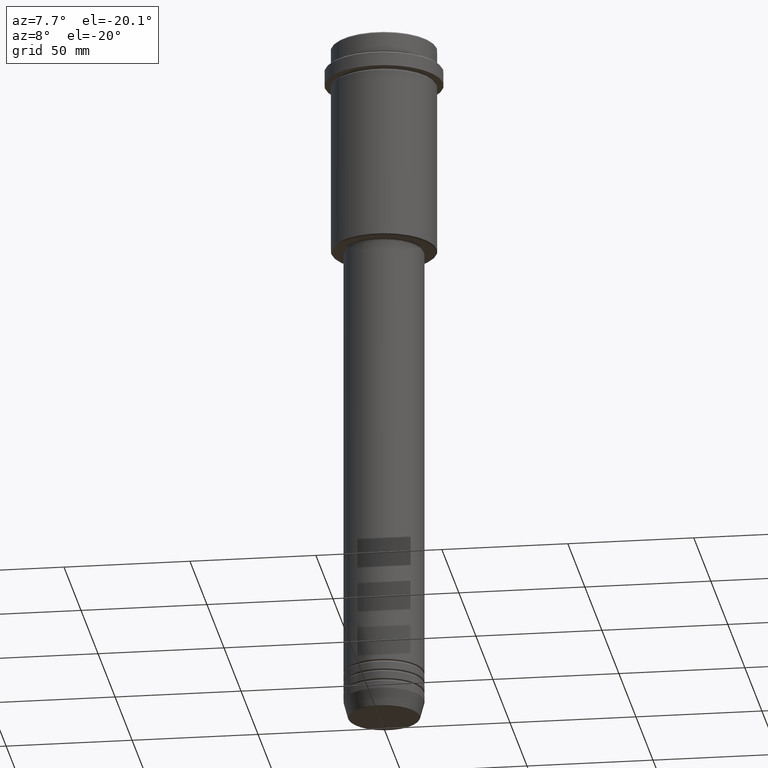
[diagram: clean part render]
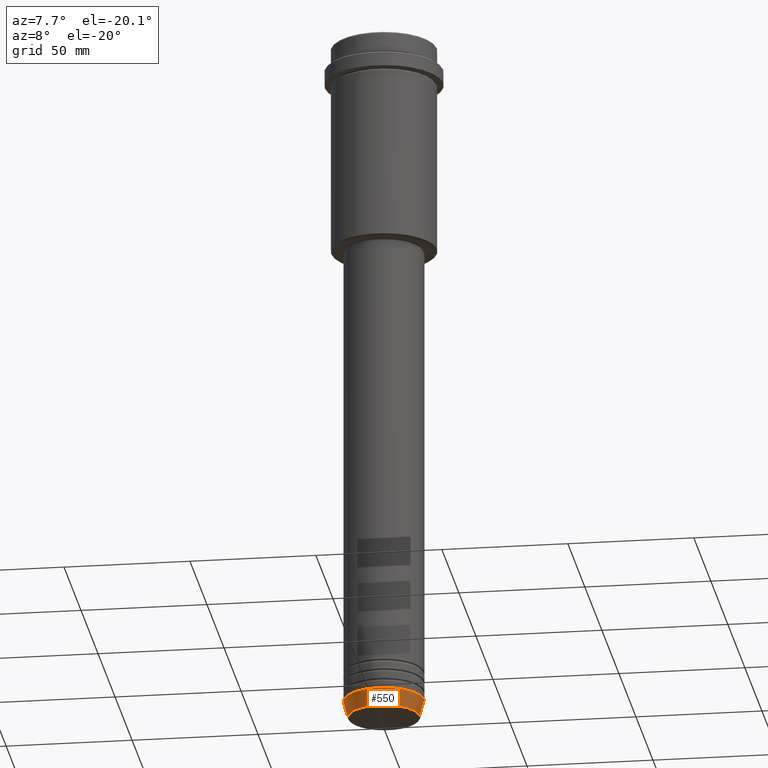
[diagram: same view with one face highlighted and labeled with its STEP entity id]
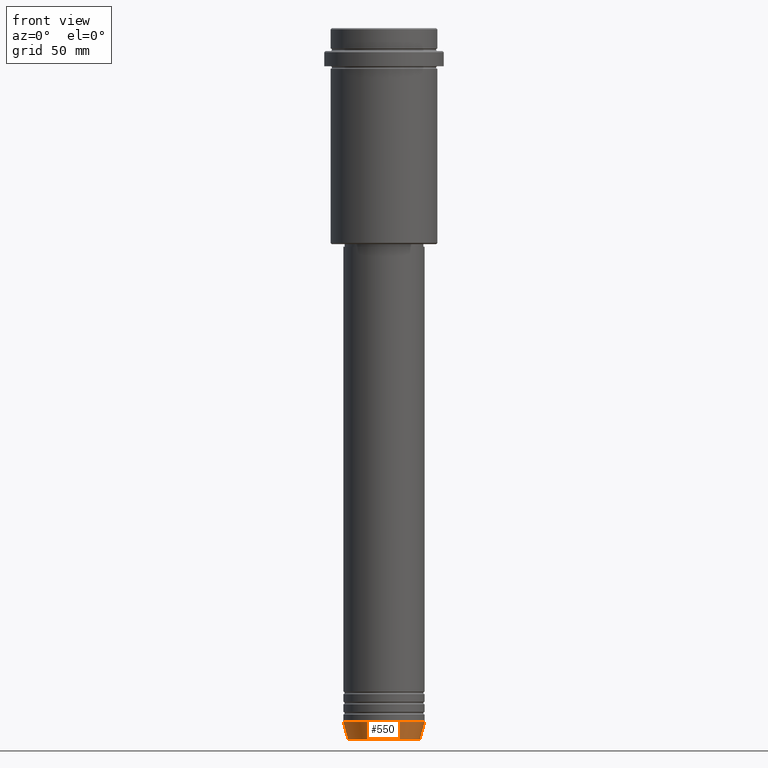
[diagram: same view with one face highlighted and labeled with its STEP entity id]
A machine part, auxiliary view. The second image highlights one B-rep face of the part: STEP entity #550.
A second angle (front view) of the same face is appended — the face is thin or edge-on in the first view.
In plain terms, the highlighted conical surface has half-angle 15 deg.
Its self-contained STEP definition (entity closure, byte-faithful):
#25 = CIRCLE ( 'NONE', #1089, 16.00000000000000000 ) ;
#33 = VERTEX_POINT ( 'NONE', #1043 ) ;
#86 = ORIENTED_EDGE ( 'NONE', *, *, #1120, .T. ) ;
#110 = DIRECTION ( 'NONE',  ( -0.2588190451025213501, 3.169619151431772337E-17, 0.9659258262890680902 ) ) ;
#112 = DIRECTION ( 'NONE',  ( -0.000000000000000000, -0.000000000000000000, 1.000000000000000000 ) ) ;
#116 = CARTESIAN_POINT ( 'NONE',  ( 0.000000000000000000, 0.000000000000000000, -273.0000000000000000 ) ) ;
#160 = VECTOR ( 'NONE', #110, 1000.000000000000000 ) ;
#202 = CIRCLE ( 'NONE', #1022, 14.22365507213718772 ) ;
#230 = DIRECTION ( 'NONE',  ( 1.000000000000000000, 0.000000000000000000, 0.000000000000000000 ) ) ;
#234 = EDGE_CURVE ( 'NONE', #776, #33, #1193, .T. ) ;
#290 = EDGE_CURVE ( 'NONE', #326, #33, #25, .T. ) ;
#326 = VERTEX_POINT ( 'NONE', #373 ) ;
#342 = FACE_OUTER_BOUND ( 'NONE', #1125, .T. ) ;
#343 = DIRECTION ( 'NONE',  ( -0.000000000000000000, -0.000000000000000000, 1.000000000000000000 ) ) ;
#373 = CARTESIAN_POINT ( 'NONE',  ( -16.00000000000000000, 1.959434878635765131E-15, -273.0000000000000000 ) ) ;
#431 = DIRECTION ( 'NONE',  ( 1.000000000000000000, 0.000000000000000000, 0.000000000000000000 ) ) ;
#447 = CARTESIAN_POINT ( 'NONE',  ( 0.000000000000000000, 0.000000000000000000, -273.0000000000000000 ) ) ;
#520 = ORIENTED_EDGE ( 'NONE', *, *, #234, .T. ) ;
#521 = CARTESIAN_POINT ( 'NONE',  ( 16.00000000000000000, 0.000000000000000000, -273.0000000000000000 ) ) ;
#550 = ADVANCED_FACE ( 'NONE', ( #342 ), #996, .T. ) ;
#609 = ORIENTED_EDGE ( 'NONE', *, *, #1154, .F. ) ;
#622 = AXIS2_PLACEMENT_3D ( 'NONE', #447, #112, #230 ) ;
#758 = ORIENTED_EDGE ( 'NONE', *, *, #290, .F. ) ;
#776 = VERTEX_POINT ( 'NONE', #1025 ) ;
#799 = DIRECTION ( 'NONE',  ( 1.000000000000000000, 0.000000000000000000, 0.000000000000000000 ) ) ;
#844 = VERTEX_POINT ( 'NONE', #1372 ) ;
#897 = CARTESIAN_POINT ( 'NONE',  ( 0.000000000000000000, 0.000000000000000000, -279.6294095225512706 ) ) ;
#993 = LINE ( 'NONE', #1111, #160 ) ;
#996 = CONICAL_SURFACE ( 'NONE', #622, 16.00000000000000000, 0.2617993877991500740 ) ;
#1022 = AXIS2_PLACEMENT_3D ( 'NONE', #897, #1416, #431 ) ;
#1025 = CARTESIAN_POINT ( 'NONE',  ( 14.22365507213718772, 0.000000000000000000, -279.6294095225512706 ) ) ;
#1043 = CARTESIAN_POINT ( 'NONE',  ( 16.00000000000000000, 0.000000000000000000, -273.0000000000000000 ) ) ;
#1087 = DIRECTION ( 'NONE',  ( 0.2588190451025213501, 0.000000000000000000, 0.9659258262890680902 ) ) ;
#1089 = AXIS2_PLACEMENT_3D ( 'NONE', #116, #343, #799 ) ;
#1111 = CARTESIAN_POINT ( 'NONE',  ( -16.00000000000000000, 1.959434878635765131E-15, -273.0000000000000000 ) ) ;
#1120 = EDGE_CURVE ( 'NONE', #844, #776, #202, .T. ) ;
#1125 = EDGE_LOOP ( 'NONE', ( #609, #86, #520, #758 ) ) ;
#1154 = EDGE_CURVE ( 'NONE', #844, #326, #993, .T. ) ;
#1193 = LINE ( 'NONE', #521, #1203 ) ;
#1203 = VECTOR ( 'NONE', #1087, 1000.000000000000000 ) ;
#1372 = CARTESIAN_POINT ( 'NONE',  ( -14.22365507213718772, 1.850665122131323337E-15, -279.6294095225512706 ) ) ;
#1416 = DIRECTION ( 'NONE',  ( -0.000000000000000000, -0.000000000000000000, 1.000000000000000000 ) ) ;